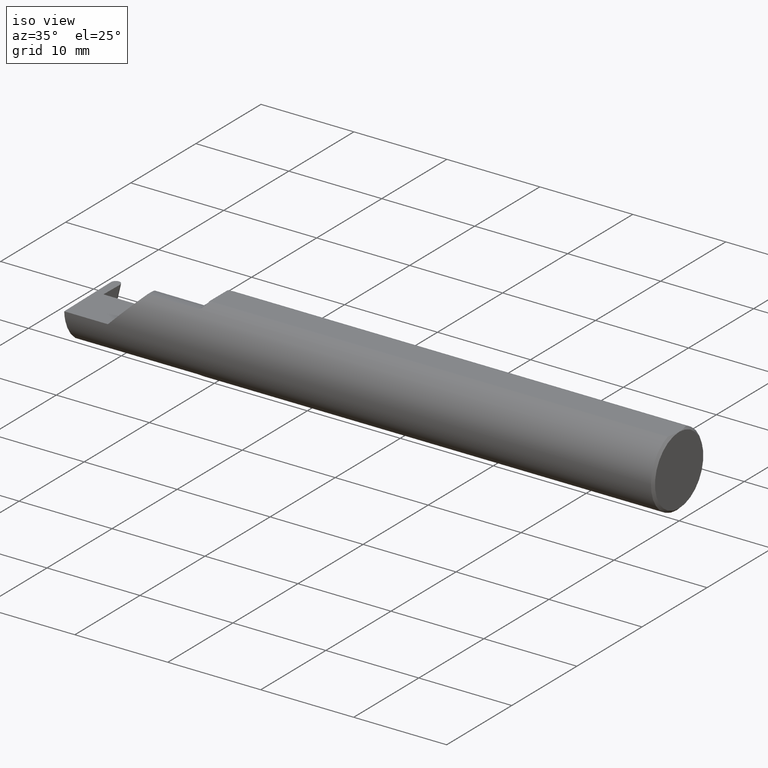
[diagram: clean part render]
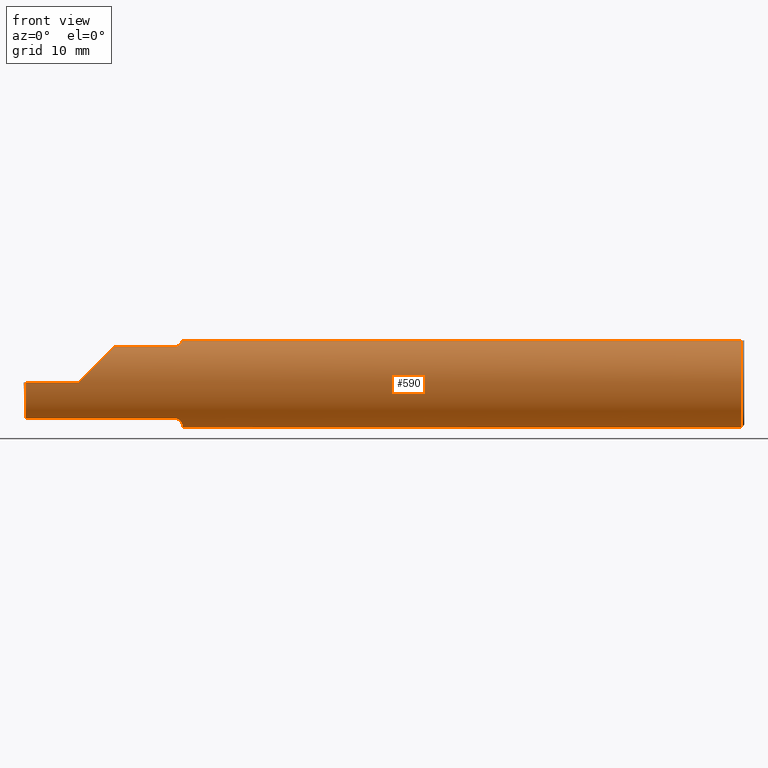
[diagram: tour spotlight — one face highlighted and labeled with its STEP entity id]
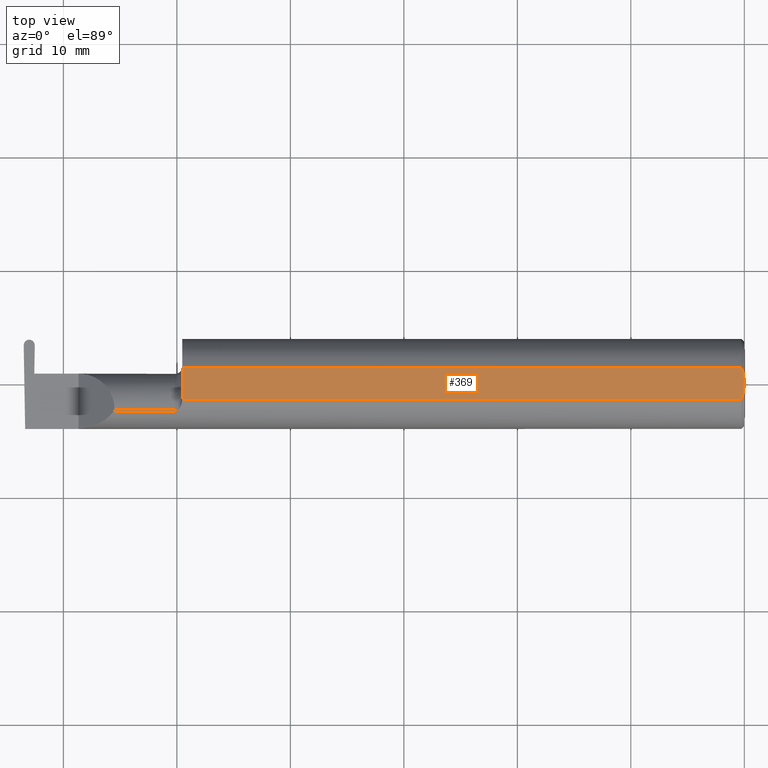
[diagram: tour spotlight — one face highlighted and labeled with its STEP entity id]
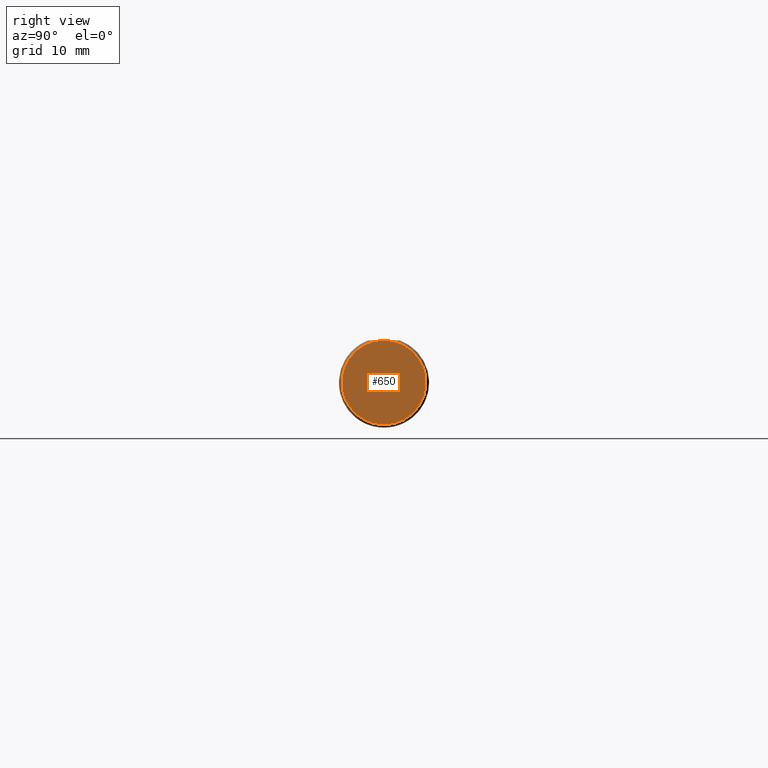
[diagram: tour spotlight — one face highlighted and labeled with its STEP entity id]
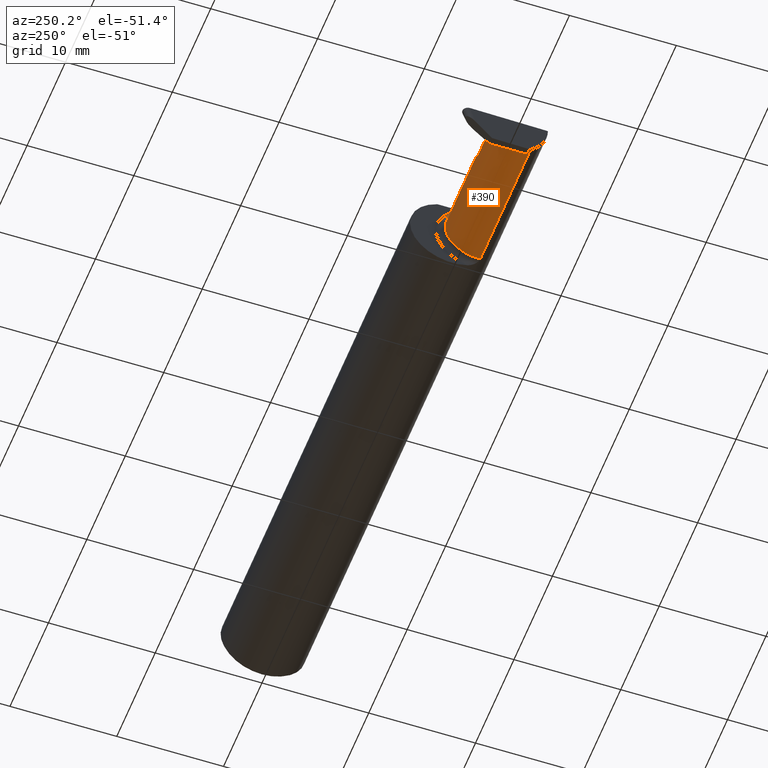
[diagram: tour spotlight — one face highlighted and labeled with its STEP entity id]
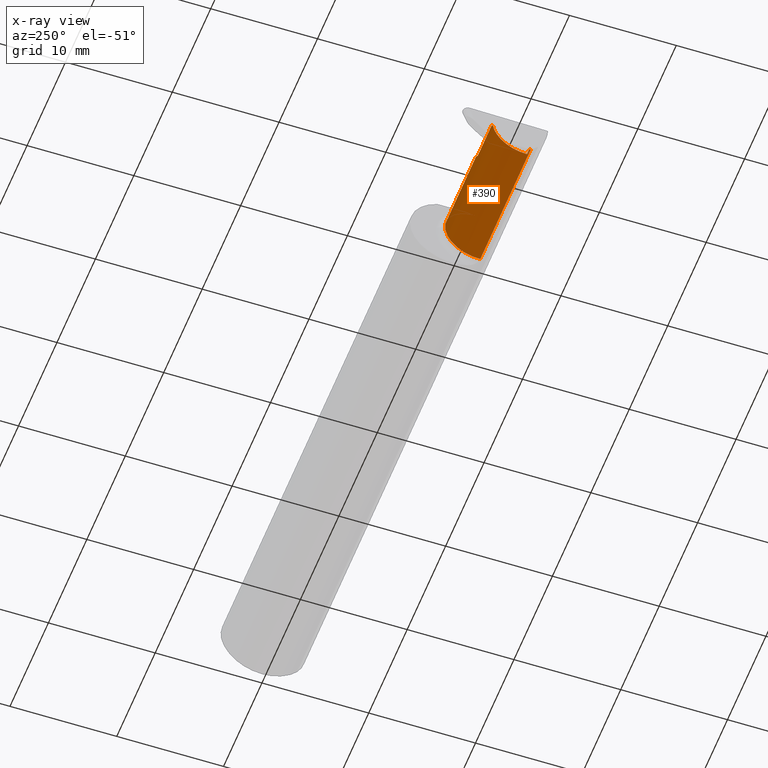
[diagram: x-ray of the same camera — body ghosted, this tour face saturated]
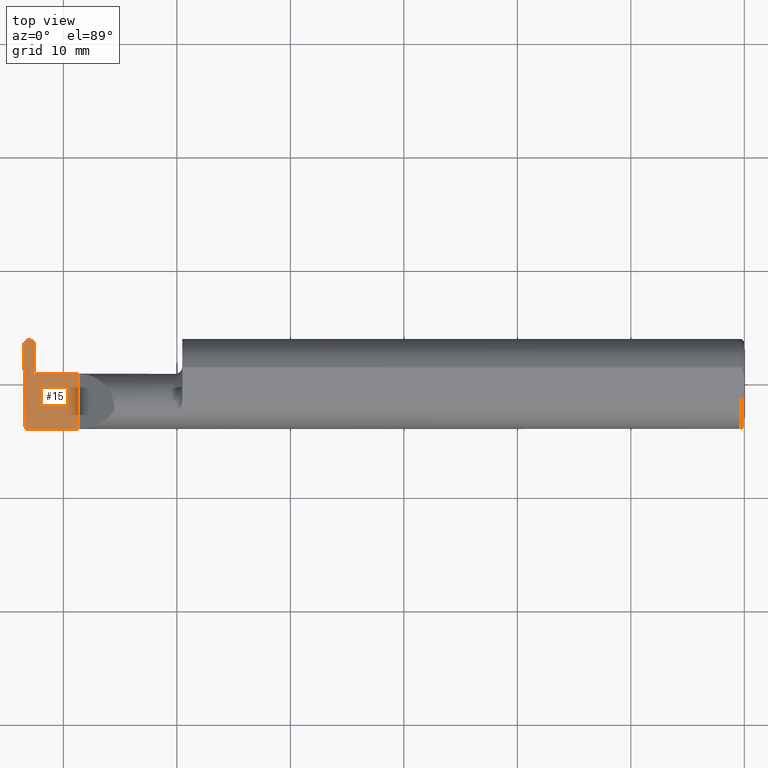
[diagram: tour spotlight — one face highlighted and labeled with its STEP entity id]
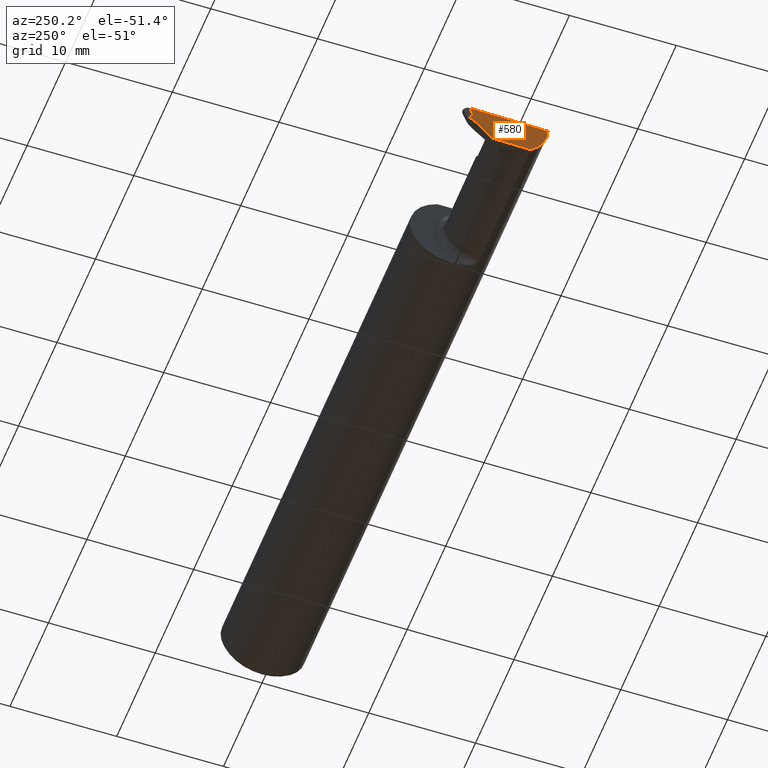
[diagram: tour spotlight — one face highlighted and labeled with its STEP entity id]
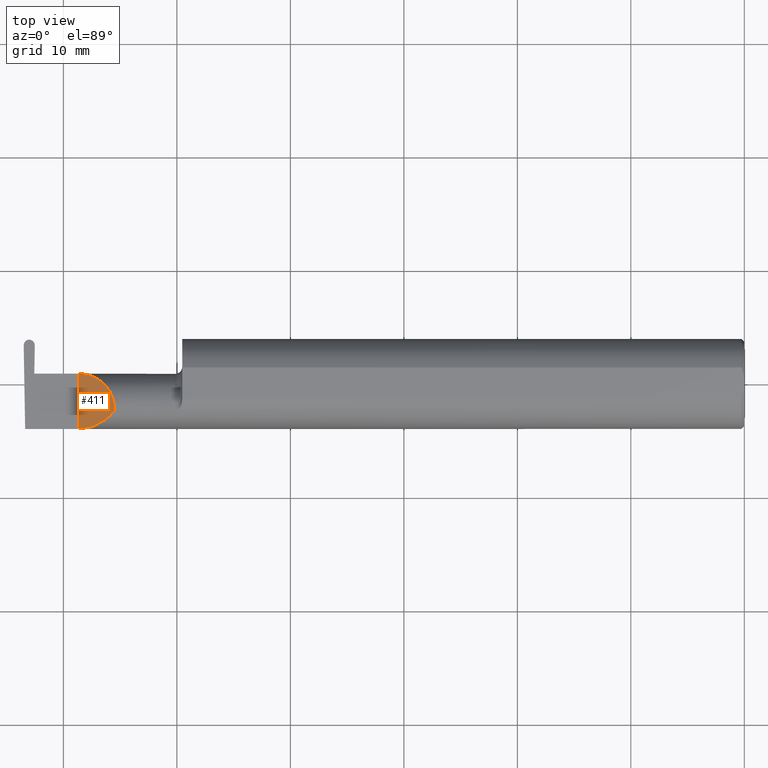
[diagram: tour spotlight — one face highlighted and labeled with its STEP entity id]
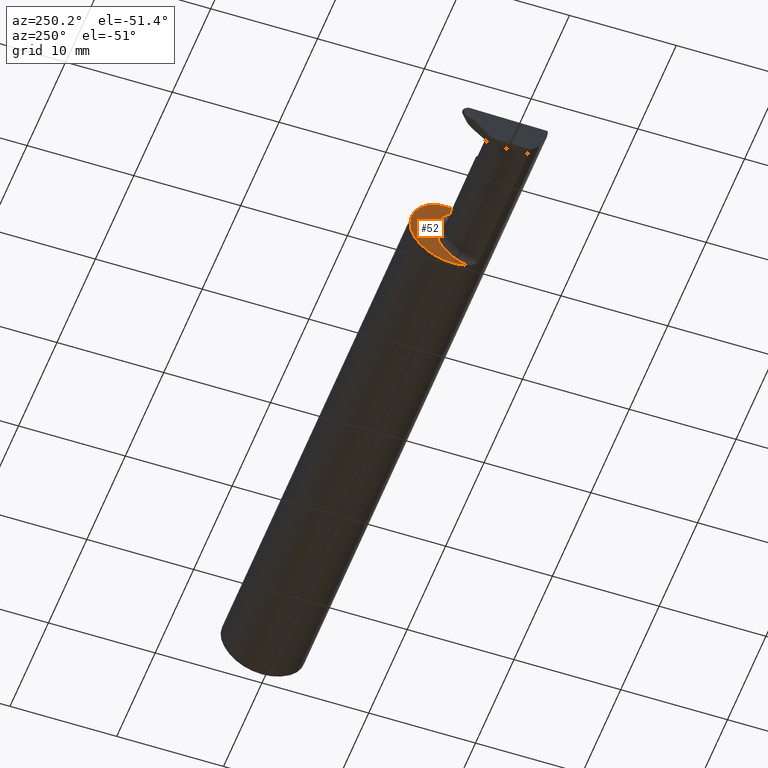
[diagram: tour spotlight — one face highlighted and labeled with its STEP entity id]
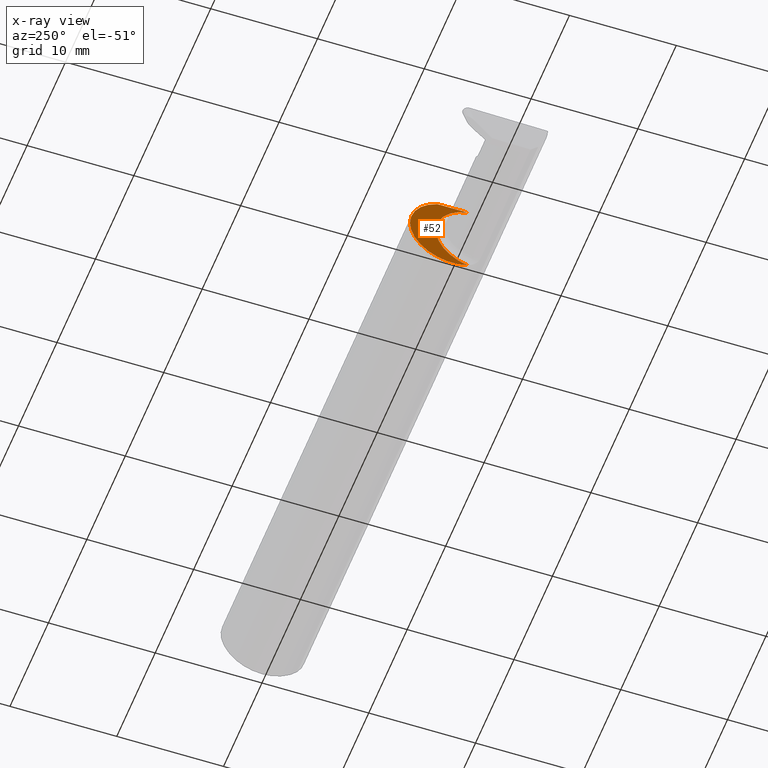
[diagram: x-ray of the same camera — body ghosted, this tour face saturated]
A machine part: a face-by-face anatomy tour. The part has 19 B-rep faces; the first image is the clean iso view, then the 8 largest visible faces are spotlighted one at a time (largest first), each with its STEP entity span.

Face 1 — front view, entity #590. In plain terms, the highlighted cylindrical surface (partial cylindrical patch) has radius 3.9688 mm, axis along (1, -0, -0).
Definition (entity closure, byte-faithful):
#1 = AXIS2_PLACEMENT_3D ( 'NONE', #309, #184, #193 ) ;
#9 = ORIENTED_EDGE ( 'NONE', *, *, #557, .F. ) ;
#11 = CARTESIAN_POINT ( 'NONE',  ( -1.949999999999999956, 0.000000000000000000, 0.000000000000000000 ) ) ;
#19 = DIRECTION ( 'NONE',  ( 1.000000000000000000, -3.338035182874222358E-17, -0.000000000000000000 ) ) ;
#25 = CARTESIAN_POINT ( 'NONE',  ( -1.949999999999999956, 0.000000000000000000, 0.000000000000000000 ) ) ;
#36 = CARTESIAN_POINT ( 'NONE',  ( -1.959400685719824731, -0.08659007606816881975, 0.1301030744137035011 ) ) ;
#40 = DIRECTION ( 'NONE',  ( 1.000000000000000000, -0.000000000000000000, -0.000000000000000000 ) ) ;
#43 = VERTEX_POINT ( 'NONE', #166 ) ;
#54 = CARTESIAN_POINT ( 'NONE',  ( -1.965967849784562294, -0.09193282278905870464, -0.1263844681298753603 ) ) ;
#59 = CARTESIAN_POINT ( 'NONE',  ( -1.949999999999999956, -0.05534803921568629687, -0.1461186403405768386 ) ) ;
#61 = ORIENTED_EDGE ( 'NONE', *, *, #678, .F. ) ;
#62 = CARTESIAN_POINT ( 'NONE',  ( -2.494927872186967654, -0.1562500000000000000, 0.000000000000000000 ) ) ;
#63 = CARTESIAN_POINT ( 'NONE',  ( -2.215156862139568972, -0.1338832970343760420, 0.09484313786043013783 ) ) ;
#64 = CARTESIAN_POINT ( 'NONE',  ( -1.952023682547747718, -0.07195611532245098363, 0.1387680352243327309 ) ) ;
#66 = VECTOR ( 'NONE', #248, 39.37007874015748143 ) ;
#71 = CARTESIAN_POINT ( 'NONE',  ( -0.009999999999999346217, 0.000000000000000000, -0.1562500000000000000 ) ) ;
#82 = EDGE_CURVE ( 'NONE', #158, #622, #478, .T. ) ;
#92 = EDGE_CURVE ( 'NONE', #464, #352, #605, .T. ) ;
#93 = CARTESIAN_POINT ( 'NONE',  ( -1.949999999999999956, 0.05500000000000025702, 0.1462499999999999079 ) ) ;
#100 = CARTESIAN_POINT ( 'NONE',  ( -2.493179509878302724, -0.1562499999999999722, -0.05005892052379400797 ) ) ;
#102 = EDGE_CURVE ( 'NONE', #143, #679, #505, .T. ) ;
#113 = VECTOR ( 'NONE', #640, 39.37007874015748143 ) ;
#115 = LINE ( 'NONE', #220, #388 ) ;
#118 =( BOUNDED_CURVE ( )  B_SPLINE_CURVE ( 3, ( #632, #697, #100, #151 ),
 .UNSPECIFIED., .F., .F. ) 
 B_SPLINE_CURVE_WITH_KNOTS ( ( 4, 4 ),
 ( 0.1809441638248390216, 1.107331509589547291 ),
 .UNSPECIFIED. ) 
 CURVE ( )  GEOMETRIC_REPRESENTATION_ITEM ( )  RATIONAL_B_SPLINE_CURVE ( ( 1.000000000000000000, 0.9297534034964446414, 0.9297534034964446414, 1.000000000000000000 ) ) 
 REPRESENTATION_ITEM ( '' )  );
#119 = CARTESIAN_POINT ( 'NONE',  ( -1.974999999999999867, -0.09386344537815119460, 0.1249148354749860523 ) ) ;
#124 = VERTEX_POINT ( 'NONE', #671 ) ;
#130 = CARTESIAN_POINT ( 'NONE',  ( -1.953289288103727595, -0.07591569094036354493, 0.1366337481269577492 ) ) ;
#133 = CARTESIAN_POINT ( 'NONE',  ( -0.009999999999999346217, -0.05500000000000025702, 0.1462499999999999079 ) ) ;
#139 = EDGE_CURVE ( 'NONE', #361, #320, #693, .T. ) ;
#143 = VERTEX_POINT ( 'NONE', #673 ) ;
#151 = CARTESIAN_POINT ( 'NONE',  ( -2.494927872186967654, -0.1562500000000000000, 0.000000000000000000 ) ) ;
#153 = CARTESIAN_POINT ( 'NONE',  ( -0.009999999999999346217, 0.000000000000000000, 0.000000000000000000 ) ) ;
#158 = VERTEX_POINT ( 'NONE', #133 ) ;
#166 = CARTESIAN_POINT ( 'NONE',  ( -1.974999999999999867, -0.09386344537815119460, -0.1249148354749860523 ) ) ;
#170 = CARTESIAN_POINT ( 'NONE',  ( -1.950383140461503739, -0.06383962317138457132, -0.1426848719775293262 ) ) ;
#176 = CARTESIAN_POINT ( 'NONE',  ( -1.970300896833253379, -0.09386344537815112521, -0.1249148354749860523 ) ) ;
#177 = DIRECTION ( 'NONE',  ( 0.000000000000000000, 1.000000000000000000, 0.000000000000000000 ) ) ;
#179 = EDGE_CURVE ( 'NONE', #124, #43, #343, .T. ) ;
#184 = DIRECTION ( 'NONE',  ( 1.000000000000000000, -0.000000000000000000, -0.000000000000000000 ) ) ;
#190 = DIRECTION ( 'NONE',  ( 1.000000000000000000, -3.338035182874222358E-17, -0.000000000000000000 ) ) ;
#193 = DIRECTION ( 'NONE',  ( 0.000000000000000000, 0.000000000000000000, 1.000000000000000000 ) ) ;
#197 = CARTESIAN_POINT ( 'NONE',  ( 0.000000000000000000, 0.05500000000000025702, 0.1462499999999999079 ) ) ;
#220 = CARTESIAN_POINT ( 'NONE',  ( -2.218249999999999833, -0.09386344537815120848, 0.1249148354749860385 ) ) ;
#245 = CARTESIAN_POINT ( 'NONE',  ( -1.949999999999999956, -0.05534803921568629687, 0.1461186403405768386 ) ) ;
#248 = DIRECTION ( 'NONE',  ( -1.000000000000000000, 0.000000000000000000, 0.000000000000000000 ) ) ;
#256 = ORIENTED_EDGE ( 'NONE', *, *, #428, .T. ) ;
#258 = LINE ( 'NONE', #589, #66 ) ;
#273 = B_SPLINE_CURVE_WITH_KNOTS ( 'NONE', 3,
 ( #245, #555, #408, #64, #130, #628, #36, #304, #283, #345 ),
 .UNSPECIFIED., .F., .F.,
 ( 4, 2, 2, 2, 4 ),
 ( 9.873825145674025903E-06, 0.0003576783385725466262, 0.0007054828519994191553, 0.001053287365426291847, 0.001401091878853164430 ),
 .UNSPECIFIED. ) ;
#280 = DIRECTION ( 'NONE',  ( 0.000000000000000000, 0.000000000000000000, -1.000000000000000000 ) ) ;
#282 = CARTESIAN_POINT ( 'NONE',  ( -2.185085164525012669, -0.09386344537815125011, 0.1249148354749859968 ) ) ;
#283 = CARTESIAN_POINT ( 'NONE',  ( -1.970304923017528465, -0.09386344537815119460, 0.1249148354749860385 ) ) ;
#293 = CARTESIAN_POINT ( 'NONE',  ( -2.218249999999999833, -0.09386344537815120848, -0.1249148354749860385 ) ) ;
#295 = DIRECTION ( 'NONE',  ( 0.000000000000000000, 1.000000000000000000, 0.000000000000000000 ) ) ;
#297 = VECTOR ( 'NONE', #190, 39.37007874015748143 ) ;
#299 = AXIS2_PLACEMENT_3D ( 'NONE', #11, #554, #177 ) ;
#304 = CARTESIAN_POINT ( 'NONE',  ( -1.965967406991768751, -0.09193165638357553293, 0.1263852119512450800 ) ) ;
#309 = CARTESIAN_POINT ( 'NONE',  ( 0.000000000000000000, 0.000000000000000000, 0.000000000000000000 ) ) ;
#315 = ORIENTED_EDGE ( 'NONE', *, *, #457, .T. ) ;
#320 = VERTEX_POINT ( 'NONE', #373 ) ;
#325 = EDGE_CURVE ( 'NONE', #622, #521, #476, .T. ) ;
#327 = CARTESIAN_POINT ( 'NONE',  ( -1.956966607163546090, -0.08318908054468117375, -0.1323305570077901450 ) ) ;
#336 = CARTESIAN_POINT ( 'NONE',  ( -2.259941079476205594, -0.1562499999999999722, 0.05005892052379393165 ) ) ;
#341 = EDGE_CURVE ( 'NONE', #158, #361, #258, .T. ) ;
#343 = LINE ( 'NONE', #293, #297 ) ;
#345 = CARTESIAN_POINT ( 'NONE',  ( -1.974999999999999867, -0.09386344537815119460, 0.1249148354749860523 ) ) ;
#352 = VERTEX_POINT ( 'NONE', #93 ) ;
#361 = VERTEX_POINT ( 'NONE', #415 ) ;
#367 = DIRECTION ( 'NONE',  ( 1.000000000000000000, -0.000000000000000000, -0.000000000000000000 ) ) ;
#373 = CARTESIAN_POINT ( 'NONE',  ( -1.949999999999999956, -0.05534803921568629687, 0.1461186403405768386 ) ) ;
#376 = CARTESIAN_POINT ( 'NONE',  ( -1.974999999999999867, -0.09386344537815119460, -0.1249148354749860523 ) ) ;
#386 = CARTESIAN_POINT ( 'NONE',  ( -2.310000000000000053, -0.1562500000000000000, 2.326828918379970872E-17 ) ) ;
#388 = VECTOR ( 'NONE', #594, 39.37007874015748143 ) ;
#391 = CARTESIAN_POINT ( 'NONE',  ( -1.949999999999999956, -0.05534803921568629687, -0.1461186403405768386 ) ) ;
#397 = CARTESIAN_POINT ( 'NONE',  ( -0.009999999999999346217, 0.05500000000000025702, 0.1462499999999999079 ) ) ;
#408 = CARTESIAN_POINT ( 'NONE',  ( -1.950387770636936136, -0.06386308788874332787, 0.1426736000023626771 ) ) ;
#412 = DIRECTION ( 'NONE',  ( 0.000000000000000000, 0.000000000000000000, -1.000000000000000000 ) ) ;
#414 = LINE ( 'NONE', #677, #631 ) ;
#415 = CARTESIAN_POINT ( 'NONE',  ( -1.949999999999999956, -0.05500000000000029865, 0.1462499999999999079 ) ) ;
#428 = EDGE_CURVE ( 'NONE', #43, #464, #496, .T. ) ;
#442 = ORIENTED_EDGE ( 'NONE', *, *, #606, .T. ) ;
#444 = AXIS2_PLACEMENT_3D ( 'NONE', #547, #550, #280 ) ;
#457 = EDGE_CURVE ( 'NONE', #467, #679, #115, .T. ) ;
#464 = VERTEX_POINT ( 'NONE', #59 ) ;
#467 = VERTEX_POINT ( 'NONE', #119 ) ;
#476 = CIRCLE ( 'NONE', #625, 0.1562500000000000000 ) ;
#478 = CIRCLE ( 'NONE', #444, 0.1562500000000000000 ) ;
#482 = CARTESIAN_POINT ( 'NONE',  ( -1.952027726275598951, -0.07197667862393765381, -0.1387581634073279113 ) ) ;
#483 = VERTEX_POINT ( 'NONE', #62 ) ;
#487 = CARTESIAN_POINT ( 'NONE',  ( -1.959394838180912535, -0.08658451260680499750, -0.1301068786309085568 ) ) ;
#493 = CARTESIAN_POINT ( 'NONE',  ( -1.953300644947379983, -0.07593986101154449886, -0.1366196799491520286 ) ) ;
#496 = B_SPLINE_CURVE_WITH_KNOTS ( 'NONE', 3,
 ( #376, #176, #54, #487, #327, #493, #482, #170, #546, #391 ),
 .UNSPECIFIED., .F., .F.,
 ( 4, 2, 2, 2, 4 ),
 ( 1.958716531439439921E-07, 0.0003508962542770091802, 0.0007015966369008743483, 0.001052297019524739028, 0.001402997402148603925 ),
 .UNSPECIFIED. ) ;
#505 =( BOUNDED_CURVE ( )  B_SPLINE_CURVE ( 3, ( #386, #336, #63, #282 ),
 .UNSPECIFIED., .F., .F. ) 
 B_SPLINE_CURVE_WITH_KNOTS ( ( 4, 4 ),
 ( 4.712388980384689674, 5.638776326149397278 ),
 .UNSPECIFIED. ) 
 CURVE ( )  GEOMETRIC_REPRESENTATION_ITEM ( )  RATIONAL_B_SPLINE_CURVE ( ( 1.000000000000000000, 0.9297534034964446414, 0.9297534034964446414, 1.000000000000000000 ) ) 
 REPRESENTATION_ITEM ( '' )  );
#508 = ORIENTED_EDGE ( 'NONE', *, *, #341, .T. ) ;
#518 = ORIENTED_EDGE ( 'NONE', *, *, #92, .T. ) ;
#521 = VERTEX_POINT ( 'NONE', #397 ) ;
#529 = ORIENTED_EDGE ( 'NONE', *, *, #139, .T. ) ;
#532 = ORIENTED_EDGE ( 'NONE', *, *, #663, .T. ) ;
#535 = ORIENTED_EDGE ( 'NONE', *, *, #82, .F. ) ;
#546 = CARTESIAN_POINT ( 'NONE',  ( -1.949999999999997735, -0.05965267370558847981, -0.1444880949289790162 ) ) ;
#547 = CARTESIAN_POINT ( 'NONE',  ( -0.009999999999999346217, 0.000000000000000000, 0.000000000000000000 ) ) ;
#550 = DIRECTION ( 'NONE',  ( 1.000000000000000000, -0.000000000000000000, -0.000000000000000000 ) ) ;
#554 = DIRECTION ( 'NONE',  ( 1.000000000000000000, -3.338035182874222358E-17, -0.000000000000000000 ) ) ;
#555 = CARTESIAN_POINT ( 'NONE',  ( -1.949999999999999956, -0.05967641461363266259, 0.1444791021495058225 ) ) ;
#557 = EDGE_CURVE ( 'NONE', #483, #143, #414, .T. ) ;
#564 = FACE_OUTER_BOUND ( 'NONE', #630, .T. ) ;
#572 = ORIENTED_EDGE ( 'NONE', *, *, #179, .T. ) ;
#589 = CARTESIAN_POINT ( 'NONE',  ( 0.000000000000000000, -0.05500000000000025702, 0.1462499999999999079 ) ) ;
#590 = ADVANCED_FACE ( 'NONE', ( #564 ), #667, .T. ) ;
#594 = DIRECTION ( 'NONE',  ( -1.000000000000000000, 3.338035182874222358E-17, 0.000000000000000000 ) ) ;
#602 = AXIS2_PLACEMENT_3D ( 'NONE', #25, #19, #295 ) ;
#605 = CIRCLE ( 'NONE', #299, 0.1562500000000000000 ) ;
#606 = EDGE_CURVE ( 'NONE', #320, #467, #273, .T. ) ;
#622 = VERTEX_POINT ( 'NONE', #71 ) ;
#625 = AXIS2_PLACEMENT_3D ( 'NONE', #153, #367, #412 ) ;
#627 = ORIENTED_EDGE ( 'NONE', *, *, #102, .F. ) ;
#628 = CARTESIAN_POINT ( 'NONE',  ( -1.956971541672856141, -0.08320054785246587536, 0.1323240042291014829 ) ) ;
#630 = EDGE_LOOP ( 'NONE', ( #572, #256, #518, #532, #672, #535, #508, #529, #442, #315, #627, #9, #61 ) ) ;
#631 = VECTOR ( 'NONE', #40, 39.37007874015748143 ) ;
#632 = CARTESIAN_POINT ( 'NONE',  ( -2.491654046899279606, -0.09386344537815119460, -0.1249148354749860385 ) ) ;
#640 = DIRECTION ( 'NONE',  ( 1.000000000000000000, -0.000000000000000000, -0.000000000000000000 ) ) ;
#663 = EDGE_CURVE ( 'NONE', #352, #521, #681, .T. ) ;
#667 = CYLINDRICAL_SURFACE ( 'NONE', #1, 0.1562500000000000000 ) ;
#671 = CARTESIAN_POINT ( 'NONE',  ( -2.491654046899279606, -0.09386344537815119460, -0.1249148354749860385 ) ) ;
#672 = ORIENTED_EDGE ( 'NONE', *, *, #325, .F. ) ;
#673 = CARTESIAN_POINT ( 'NONE',  ( -2.310000000000000053, -0.1562500000000000000, 2.326828918379970872E-17 ) ) ;
#677 = CARTESIAN_POINT ( 'NONE',  ( -3.749399456654646757E-32, -0.1562499999999999722, 3.061616997868383634E-16 ) ) ;
#678 = EDGE_CURVE ( 'NONE', #124, #483, #118, .T. ) ;
#679 = VERTEX_POINT ( 'NONE', #690 ) ;
#681 = LINE ( 'NONE', #197, #113 ) ;
#690 = CARTESIAN_POINT ( 'NONE',  ( -2.185085164525012669, -0.09386344537815125011, 0.1249148354749859968 ) ) ;
#693 = CIRCLE ( 'NONE', #602, 0.1562500000000000000 ) ;
#697 = CARTESIAN_POINT ( 'NONE',  ( -2.492005784574590432, -0.1338832970343760143, -0.09484313786043020722 ) ) ;

Face 2 — top view, entity #369. In plain terms, the highlighted planar face has unit normal (0, 0, 1).
Definition (entity closure, byte-faithful):
#4 = EDGE_CURVE ( 'NONE', #158, #276, #498, .T. ) ;
#45 = CARTESIAN_POINT ( 'NONE',  ( -1.949999999999999956, 0.1562499999999999722, 0.1462499999999999079 ) ) ;
#66 = VECTOR ( 'NONE', #248, 39.37007874015748143 ) ;
#74 = B_SPLINE_CURVE_WITH_KNOTS ( 'NONE', 3,
 ( #575, #664, #503, #180, #250, #519 ),
 .UNSPECIFIED., .F., .F.,
 ( 4, 2, 4 ),
 ( 0.002917204643106987867, 0.003626485218777173065, 0.004335765794447357831 ),
 .UNSPECIFIED. ) ;
#93 = CARTESIAN_POINT ( 'NONE',  ( -1.949999999999999956, 0.05500000000000025702, 0.1462499999999999079 ) ) ;
#113 = VECTOR ( 'NONE', #640, 39.37007874015748143 ) ;
#116 = CARTESIAN_POINT ( 'NONE',  ( -0.006902993000889765321, -0.04620168466162338089, 0.1462499999999999079 ) ) ;
#133 = CARTESIAN_POINT ( 'NONE',  ( -0.009999999999999346217, -0.05500000000000025702, 0.1462499999999999079 ) ) ;
#142 = AXIS2_PLACEMENT_3D ( 'NONE', #364, #582, #255 ) ;
#149 = FACE_OUTER_BOUND ( 'NONE', #340, .T. ) ;
#158 = VERTEX_POINT ( 'NONE', #133 ) ;
#171 = CARTESIAN_POINT ( 'NONE',  ( 8.244898656659575962E-16, -0.009392195110445691539, 0.1462499999999999079 ) ) ;
#180 = CARTESIAN_POINT ( 'NONE',  ( -0.004369978710878717927, 0.03712520110649330379, 0.1462499999999998801 ) ) ;
#197 = CARTESIAN_POINT ( 'NONE',  ( 0.000000000000000000, 0.05500000000000025702, 0.1462499999999999079 ) ) ;
#199 = DIRECTION ( 'NONE',  ( 3.338035182874222358E-17, 1.000000000000000000, 0.000000000000000000 ) ) ;
#217 = CARTESIAN_POINT ( 'NONE',  ( -0.004356020035457939046, -0.03707757839199336825, 0.1462499999999999356 ) ) ;
#248 = DIRECTION ( 'NONE',  ( -1.000000000000000000, 0.000000000000000000, 0.000000000000000000 ) ) ;
#250 = CARTESIAN_POINT ( 'NONE',  ( -0.006876244390215646360, 0.04612569429038746588, 0.1462499999999999079 ) ) ;
#255 = DIRECTION ( 'NONE',  ( -1.000000000000000000, 0.000000000000000000, 0.000000000000000000 ) ) ;
#258 = LINE ( 'NONE', #589, #66 ) ;
#276 = VERTEX_POINT ( 'NONE', #641 ) ;
#286 = EDGE_CURVE ( 'NONE', #361, #352, #463, .T. ) ;
#340 = EDGE_LOOP ( 'NONE', ( #470, #567, #479, #399, #586 ) ) ;
#341 = EDGE_CURVE ( 'NONE', #158, #361, #258, .T. ) ;
#352 = VERTEX_POINT ( 'NONE', #93 ) ;
#361 = VERTEX_POINT ( 'NONE', #415 ) ;
#364 = CARTESIAN_POINT ( 'NONE',  ( -2.815049599269702885, 0.1562500000000000000, 0.1462499999999999079 ) ) ;
#369 = ADVANCED_FACE ( 'NONE', ( #149 ), #638, .T. ) ;
#378 = CARTESIAN_POINT ( 'NONE',  ( -0.0009112379456083213175, -0.01868163542566874183, 0.1462499999999998801 ) ) ;
#397 = CARTESIAN_POINT ( 'NONE',  ( -0.009999999999999346217, 0.05500000000000025702, 0.1462499999999999079 ) ) ;
#399 = ORIENTED_EDGE ( 'NONE', *, *, #663, .F. ) ;
#415 = CARTESIAN_POINT ( 'NONE',  ( -1.949999999999999956, -0.05500000000000029865, 0.1462499999999999079 ) ) ;
#436 = CARTESIAN_POINT ( 'NONE',  ( -0.009999999999999346217, -0.05500000000000025702, 0.1462499999999999079 ) ) ;
#463 = LINE ( 'NONE', #45, #548 ) ;
#470 = ORIENTED_EDGE ( 'NONE', *, *, #341, .F. ) ;
#479 = ORIENTED_EDGE ( 'NONE', *, *, #613, .T. ) ;
#492 = CARTESIAN_POINT ( 'NONE',  ( 0.000000000000000000, 0.000000000000000000, 0.1462499999999999079 ) ) ;
#498 = B_SPLINE_CURVE_WITH_KNOTS ( 'NONE', 3,
 ( #436, #116, #217, #378, #171, #492 ),
 .UNSPECIFIED., .F., .F.,
 ( 4, 2, 4 ),
 ( 0.001499968775326589784, 0.002208586709216788825, 0.002917204643106987867 ),
 .UNSPECIFIED. ) ;
#503 = CARTESIAN_POINT ( 'NONE',  ( -0.0009289815493471145118, 0.01880306305459481311, 0.1462499999999999356 ) ) ;
#519 = CARTESIAN_POINT ( 'NONE',  ( -0.009999999999999346217, 0.05500000000000025702, 0.1462499999999999079 ) ) ;
#521 = VERTEX_POINT ( 'NONE', #397 ) ;
#548 = VECTOR ( 'NONE', #199, 39.37007874015748143 ) ;
#567 = ORIENTED_EDGE ( 'NONE', *, *, #4, .T. ) ;
#575 = CARTESIAN_POINT ( 'NONE',  ( 0.000000000000000000, 0.000000000000000000, 0.1462499999999999079 ) ) ;
#582 = DIRECTION ( 'NONE',  ( 0.000000000000000000, 0.000000000000000000, 1.000000000000000000 ) ) ;
#586 = ORIENTED_EDGE ( 'NONE', *, *, #286, .F. ) ;
#589 = CARTESIAN_POINT ( 'NONE',  ( 0.000000000000000000, -0.05500000000000025702, 0.1462499999999999079 ) ) ;
#613 = EDGE_CURVE ( 'NONE', #276, #521, #74, .T. ) ;
#638 = PLANE ( 'NONE',  #142 ) ;
#640 = DIRECTION ( 'NONE',  ( 1.000000000000000000, -0.000000000000000000, -0.000000000000000000 ) ) ;
#641 = CARTESIAN_POINT ( 'NONE',  ( 0.000000000000000000, 0.000000000000000000, 0.1462499999999999079 ) ) ;
#663 = EDGE_CURVE ( 'NONE', #352, #521, #681, .T. ) ;
#664 = CARTESIAN_POINT ( 'NONE',  ( 8.387126826739872023E-16, 0.009400977926386628464, 0.1462499999999999079 ) ) ;
#681 = LINE ( 'NONE', #197, #113 ) ;

Face 3 — right view, entity #650. In plain terms, the highlighted planar face has unit normal (-1, -0, 0).
Definition (entity closure, byte-faithful):
#3 = EDGE_CURVE ( 'NONE', #276, #206, #454, .T. ) ;
#56 = AXIS2_PLACEMENT_3D ( 'NONE', #342, #461, #465 ) ;
#132 = ORIENTED_EDGE ( 'NONE', *, *, #420, .T. ) ;
#175 = CIRCLE ( 'NONE', #226, 0.1462500000000006017 ) ;
#206 = VERTEX_POINT ( 'NONE', #356 ) ;
#219 = CARTESIAN_POINT ( 'NONE',  ( 6.716919984422033216E-17, -1.610720944981573921E-17, 0.000000000000000000 ) ) ;
#226 = AXIS2_PLACEMENT_3D ( 'NONE', #435, #651, #648 ) ;
#239 = EDGE_LOOP ( 'NONE', ( #634, #132 ) ) ;
#275 = DIRECTION ( 'NONE',  ( 1.000000000000000000, 1.101347654688252073E-16, 0.000000000000000000 ) ) ;
#276 = VERTEX_POINT ( 'NONE', #641 ) ;
#342 = CARTESIAN_POINT ( 'NONE',  ( 0.000000000000000000, 0.6098818984023103296, -0.1562500000000000000 ) ) ;
#356 = CARTESIAN_POINT ( 'NONE',  ( 6.716919984422033216E-17, 3.980760711824011364E-32, -0.1462500000000006017 ) ) ;
#394 = FACE_OUTER_BOUND ( 'NONE', #239, .T. ) ;
#420 = EDGE_CURVE ( 'NONE', #206, #276, #175, .T. ) ;
#435 = CARTESIAN_POINT ( 'NONE',  ( 6.716919984422033216E-17, -1.610720944981573921E-17, 0.000000000000000000 ) ) ;
#454 = CIRCLE ( 'NONE', #515, 0.1462500000000006017 ) ;
#461 = DIRECTION ( 'NONE',  ( -1.000000000000000000, -1.101347654688252073E-16, 0.000000000000000000 ) ) ;
#465 = DIRECTION ( 'NONE',  ( 1.101347654688252073E-16, -1.000000000000000000, 0.000000000000000000 ) ) ;
#515 = AXIS2_PLACEMENT_3D ( 'NONE', #219, #275, #604 ) ;
#604 = DIRECTION ( 'NONE',  ( 1.101347654688252196E-16, -1.000000000000000000, 0.000000000000000000 ) ) ;
#610 = PLANE ( 'NONE',  #56 ) ;
#634 = ORIENTED_EDGE ( 'NONE', *, *, #3, .T. ) ;
#641 = CARTESIAN_POINT ( 'NONE',  ( 0.000000000000000000, 0.000000000000000000, 0.1462499999999999079 ) ) ;
#648 = DIRECTION ( 'NONE',  ( 1.101347654688252196E-16, -1.000000000000000000, 0.000000000000000000 ) ) ;
#650 = ADVANCED_FACE ( 'NONE', ( #394 ), #610, .F. ) ;
#651 = DIRECTION ( 'NONE',  ( 1.000000000000000000, 1.101347654688252073E-16, 0.000000000000000000 ) ) ;

Face 4 — auxiliary view, entity #390. An x-ray twin of the same camera follows (body ghosted, this face saturated) — the face is partly hidden behind the body. In plain terms, the highlighted cylindrical surface (edge-blend (fillet) strip) has radius 3.175 mm, axis along (1, -0, -0).
Definition (entity closure, byte-faithful):
#5 = CYLINDRICAL_SURFACE ( 'NONE', #354, 0.1250000000000000555 ) ;
#18 = CIRCLE ( 'NONE', #106, 0.1250000000000000555 ) ;
#38 = CARTESIAN_POINT ( 'NONE',  ( -2.310000000000000053, 0.03574999999999998318, 6.735557395310446214E-17 ) ) ;
#39 = VERTEX_POINT ( 'NONE', #646 ) ;
#43 = VERTEX_POINT ( 'NONE', #166 ) ;
#50 = DIRECTION ( 'NONE',  ( -1.000000000000000000, 3.338035182874222358E-17, 0.000000000000000000 ) ) ;
#75 = LINE ( 'NONE', #510, #423 ) ;
#79 = VECTOR ( 'NONE', #430, 39.37007874015748143 ) ;
#84 = CARTESIAN_POINT ( 'NONE',  ( -2.491731600424126114, -0.08924999999999995437, -0.1250000000000000278 ) ) ;
#86 = CARTESIAN_POINT ( 'NONE',  ( -2.182302892373305880, -0.01852992788968683621, 0.1276971076266923411 ) ) ;
#106 = AXIS2_PLACEMENT_3D ( 'NONE', #500, #50, #222 ) ;
#107 = LINE ( 'NONE', #213, #79 ) ;
#115 = LINE ( 'NONE', #220, #388 ) ;
#119 = CARTESIAN_POINT ( 'NONE',  ( -1.974999999999999867, -0.09386344537815119460, 0.1249148354749860523 ) ) ;
#124 = VERTEX_POINT ( 'NONE', #671 ) ;
#134 = ORIENTED_EDGE ( 'NONE', *, *, #494, .T. ) ;
#136 = EDGE_CURVE ( 'NONE', #196, #39, #75, .T. ) ;
#138 = ORIENTED_EDGE ( 'NONE', *, *, #366, .T. ) ;
#140 =( BOUNDED_CURVE ( )  B_SPLINE_CURVE ( 3, ( #262, #576, #194, #694 ),
 .UNSPECIFIED., .F., .F. ) 
 B_SPLINE_CURVE_WITH_KNOTS ( ( 4, 4 ),
 ( 3.176499238629678867, 4.677482395344784827 ),
 .UNSPECIFIED. ) 
 CURVE ( )  GEOMETRIC_REPRESENTATION_ITEM ( )  RATIONAL_B_SPLINE_CURVE ( ( 1.000000000000000000, 0.8209024677461176367, 0.8209024677461176367, 1.000000000000000000 ) ) 
 REPRESENTATION_ITEM ( '' )  );
#141 = CARTESIAN_POINT ( 'NONE',  ( -2.310000000000000053, 0.03574999999999998318, 6.735557395310446214E-17 ) ) ;
#146 = ORIENTED_EDGE ( 'NONE', *, *, #360, .F. ) ;
#154 = ORIENTED_EDGE ( 'NONE', *, *, #486, .T. ) ;
#166 = CARTESIAN_POINT ( 'NONE',  ( -1.974999999999999867, -0.09386344537815119460, -0.1249148354749860523 ) ) ;
#172 = EDGE_CURVE ( 'NONE', #188, #674, #452, .T. ) ;
#179 = EDGE_CURVE ( 'NONE', #124, #43, #343, .T. ) ;
#185 = DIRECTION ( 'NONE',  ( -1.000000000000000000, 3.338035182874222358E-17, 0.000000000000000000 ) ) ;
#188 = VERTEX_POINT ( 'NONE', #238 ) ;
#189 =( BOUNDED_CURVE ( )  B_SPLINE_CURVE ( 3, ( #507, #232, #581, #84 ),
 .UNSPECIFIED., .F., .T. ) 
 B_SPLINE_CURVE_WITH_KNOTS ( ( 4, 4 ),
 ( 0.4265488699883174251, 0.4634648172053507098 ),
 .UNSPECIFIED. ) 
 CURVE ( )  GEOMETRIC_REPRESENTATION_ITEM ( )  RATIONAL_B_SPLINE_CURVE ( ( 1.000000000000000000, 0.9998864376276719312, 0.9998864376276719312, 1.000000000000000000 ) ) 
 REPRESENTATION_ITEM ( '' )  );
#190 = DIRECTION ( 'NONE',  ( 1.000000000000000000, -3.338035182874222358E-17, -0.000000000000000000 ) ) ;
#194 = CARTESIAN_POINT ( 'NONE',  ( -2.465987837521955051, 0.03061608555686810840, -0.07778349322819337608 ) ) ;
#196 = VERTEX_POINT ( 'NONE', #141 ) ;
#203 = VERTEX_POINT ( 'NONE', #228 ) ;
#213 = CARTESIAN_POINT ( 'NONE',  ( -1.949999999999999956, 0.03544550628247788993, -0.008719559218017548449 ) ) ;
#214 = VERTEX_POINT ( 'NONE', #243 ) ;
#216 = CARTESIAN_POINT ( 'NONE',  ( -1.949999999999999956, -0.08925000000000006539, 0.000000000000000000 ) ) ;
#220 = CARTESIAN_POINT ( 'NONE',  ( -2.218249999999999833, -0.09386344537815120848, 0.1249148354749860385 ) ) ;
#222 = DIRECTION ( 'NONE',  ( 0.000000000000000000, -1.000000000000000000, 0.000000000000000000 ) ) ;
#228 = CARTESIAN_POINT ( 'NONE',  ( -2.455856563967764750, 0.03544550628247786217, -0.008719559218018039376 ) ) ;
#232 = CARTESIAN_POINT ( 'NONE',  ( -2.491678896027814893, -0.09232624159892571791, -0.1249716086008007682 ) ) ;
#238 = CARTESIAN_POINT ( 'NONE',  ( -2.491731600424126114, -0.08924999999999995437, -0.1250000000000000278 ) ) ;
#243 = CARTESIAN_POINT ( 'NONE',  ( -2.463530610404879084, 0.03544550628247787605, -0.008719559218017850291 ) ) ;
#262 = CARTESIAN_POINT ( 'NONE',  ( -2.467812226837702738, -0.08925000000000005151, -0.1250000000000000278 ) ) ;
#293 = CARTESIAN_POINT ( 'NONE',  ( -2.218249999999999833, -0.09386344537815120848, -0.1249148354749860385 ) ) ;
#297 = VECTOR ( 'NONE', #190, 39.37007874015748143 ) ;
#310 = CARTESIAN_POINT ( 'NONE',  ( -2.456059559779446122, 0.03575000000000000400, -0.002908882086657957940 ) ) ;
#311 = ORIENTED_EDGE ( 'NONE', *, *, #558, .T. ) ;
#312 = CARTESIAN_POINT ( 'NONE',  ( -2.467812226837702738, -0.08925000000000005151, -0.1250000000000000278 ) ) ;
#314 = EDGE_CURVE ( 'NONE', #674, #214, #140, .T. ) ;
#319 = DIRECTION ( 'NONE',  ( 0.000000000000000000, -1.000000000000000000, 0.000000000000000000 ) ) ;
#343 = LINE ( 'NONE', #293, #297 ) ;
#353 = VECTOR ( 'NONE', #568, 39.37007874015748143 ) ;
#354 = AXIS2_PLACEMENT_3D ( 'NONE', #216, #433, #319 ) ;
#360 = EDGE_CURVE ( 'NONE', #679, #196, #695, .T. ) ;
#366 = EDGE_CURVE ( 'NONE', #203, #39, #621, .T. ) ;
#388 = VECTOR ( 'NONE', #594, 39.37007874015748143 ) ;
#390 = ADVANCED_FACE ( 'NONE', ( #490 ), #5, .T. ) ;
#403 = ORIENTED_EDGE ( 'NONE', *, *, #179, .F. ) ;
#422 = CARTESIAN_POINT ( 'NONE',  ( -2.185085164525012669, -0.09386344537815125011, 0.1249148354749859968 ) ) ;
#423 = VECTOR ( 'NONE', #185, 39.37007874015748143 ) ;
#426 = CARTESIAN_POINT ( 'NONE',  ( -2.456161057685287030, 0.03574999999999992073, 0.000000000000000000 ) ) ;
#427 = ORIENTED_EDGE ( 'NONE', *, *, #457, .F. ) ;
#430 = DIRECTION ( 'NONE',  ( 1.000000000000000000, -3.338035182874222358E-17, -0.000000000000000000 ) ) ;
#433 = DIRECTION ( 'NONE',  ( 1.000000000000000000, -3.338035182874222358E-17, -0.000000000000000000 ) ) ;
#452 = LINE ( 'NONE', #623, #353 ) ;
#457 = EDGE_CURVE ( 'NONE', #467, #679, #115, .T. ) ;
#467 = VERTEX_POINT ( 'NONE', #119 ) ;
#486 = EDGE_CURVE ( 'NONE', #467, #43, #18, .T. ) ;
#490 = FACE_OUTER_BOUND ( 'NONE', #653, .T. ) ;
#494 = EDGE_CURVE ( 'NONE', #214, #203, #107, .T. ) ;
#500 = CARTESIAN_POINT ( 'NONE',  ( -1.974999999999999867, -0.08925000000000006539, 0.000000000000000000 ) ) ;
#507 = CARTESIAN_POINT ( 'NONE',  ( -2.491654046899279606, -0.09386344537815119460, -0.1249148354749860385 ) ) ;
#510 = CARTESIAN_POINT ( 'NONE',  ( -1.949999999999999956, 0.03574999999999996930, 6.735557395310446214E-17 ) ) ;
#524 = CARTESIAN_POINT ( 'NONE',  ( -2.234615121572618435, 0.03574999999999999012, 0.07538487842738049449 ) ) ;
#556 = ORIENTED_EDGE ( 'NONE', *, *, #314, .T. ) ;
#558 = EDGE_CURVE ( 'NONE', #124, #188, #189, .T. ) ;
#568 = DIRECTION ( 'NONE',  ( 1.000000000000000000, -0.000000000000000000, -0.000000000000000000 ) ) ;
#576 = CARTESIAN_POINT ( 'NONE',  ( -2.467726418575958203, -0.02001741890188683468, -0.1250000000000000555 ) ) ;
#581 = CARTESIAN_POINT ( 'NONE',  ( -2.491704750138817648, -0.09078825181510688513, -0.1250000000000001110 ) ) ;
#587 = CARTESIAN_POINT ( 'NONE',  ( -2.455856563967764750, 0.03544550628247786217, -0.008719559218018039376 ) ) ;
#594 = DIRECTION ( 'NONE',  ( -1.000000000000000000, 3.338035182874222358E-17, 0.000000000000000000 ) ) ;
#621 = B_SPLINE_CURVE_WITH_KNOTS ( 'NONE', 3,
 ( #587, #629, #310, #426 ),
 .UNSPECIFIED., .F., .F.,
 ( 4, 4 ),
 ( 0.000000000000000000, 1.000000000000000000 ),
 .UNSPECIFIED. ) ;
#623 = CARTESIAN_POINT ( 'NONE',  ( -2.690212243092998889, -0.08924999999999995437, -0.1250000000000000278 ) ) ;
#629 = CARTESIAN_POINT ( 'NONE',  ( -2.455958061873605214, 0.03564841963938065322, -0.005817763021923164773 ) ) ;
#639 = ORIENTED_EDGE ( 'NONE', *, *, #136, .F. ) ;
#646 = CARTESIAN_POINT ( 'NONE',  ( -2.456161057685287030, 0.03574999999999992073, 0.000000000000000000 ) ) ;
#653 = EDGE_LOOP ( 'NONE', ( #403, #311, #696, #556, #134, #138, #639, #146, #427, #154 ) ) ;
#671 = CARTESIAN_POINT ( 'NONE',  ( -2.491654046899279606, -0.09386344537815119460, -0.1249148354749860385 ) ) ;
#674 = VERTEX_POINT ( 'NONE', #312 ) ;
#679 = VERTEX_POINT ( 'NONE', #690 ) ;
#690 = CARTESIAN_POINT ( 'NONE',  ( -2.185085164525012669, -0.09386344537815125011, 0.1249148354749859968 ) ) ;
#694 = CARTESIAN_POINT ( 'NONE',  ( -2.463530610404879084, 0.03544550628247787605, -0.008719559218017850291 ) ) ;
#695 =( BOUNDED_CURVE ( )  B_SPLINE_CURVE ( 3, ( #422, #86, #524, #38 ),
 .UNSPECIFIED., .F., .F. ) 
 B_SPLINE_CURVE_WITH_KNOTS ( ( 4, 4 ),
 ( 6.246269359962552947, 7.853981633974482790 ),
 .UNSPECIFIED. ) 
 CURVE ( )  GEOMETRIC_REPRESENTATION_ITEM ( )  RATIONAL_B_SPLINE_CURVE ( ( 1.000000000000000000, 0.7959568752655976631, 0.7959568752655976631, 1.000000000000000000 ) ) 
 REPRESENTATION_ITEM ( '' )  );
#696 = ORIENTED_EDGE ( 'NONE', *, *, #172, .T. ) ;

Face 5 — top view, entity #15. In plain terms, the highlighted planar face has unit normal (0, 0, -1).
Definition (entity closure, byte-faithful):
#6 = VERTEX_POINT ( 'NONE', #599 ) ;
#12 = CARTESIAN_POINT ( 'NONE',  ( -2.480975459117687354, 0.1537499999999999700, 0.000000000000000000 ) ) ;
#15 = ADVANCED_FACE ( 'NONE', ( #112 ), #221, .F. ) ;
#30 = CARTESIAN_POINT ( 'NONE',  ( -2.480975459117687354, 0.1537499999999999700, 0.000000000000000000 ) ) ;
#33 = LINE ( 'NONE', #89, #330 ) ;
#39 = VERTEX_POINT ( 'NONE', #646 ) ;
#40 = DIRECTION ( 'NONE',  ( 1.000000000000000000, -0.000000000000000000, -0.000000000000000000 ) ) ;
#41 = LINE ( 'NONE', #96, #475 ) ;
#62 = CARTESIAN_POINT ( 'NONE',  ( -2.494927872186967654, -0.1562500000000000000, 0.000000000000000000 ) ) ;
#70 = EDGE_CURVE ( 'NONE', #223, #483, #543, .T. ) ;
#72 = LINE ( 'NONE', #455, #571 ) ;
#73 = VERTEX_POINT ( 'NONE', #660 ) ;
#75 = LINE ( 'NONE', #510, #423 ) ;
#87 = ORIENTED_EDGE ( 'NONE', *, *, #114, .T. ) ;
#89 = CARTESIAN_POINT ( 'NONE',  ( -2.310000000000000053, -0.2500000000000000555, 2.326828918379970872E-17 ) ) ;
#90 =( BOUNDED_CURVE ( )  B_SPLINE_CURVE ( 3, ( #517, #669, #131, #30 ),
 .UNSPECIFIED., .F., .F. ) 
 B_SPLINE_CURVE_WITH_KNOTS ( ( 4, 4 ),
 ( 1.677524580234104556, 3.253450286950894110 ),
 .UNSPECIFIED. ) 
 CURVE ( )  GEOMETRIC_REPRESENTATION_ITEM ( )  RATIONAL_B_SPLINE_CURVE ( ( 1.000000000000000000, 0.8035272986452550725, 0.8035272986452550725, 1.000000000000000000 ) ) 
 REPRESENTATION_ITEM ( '' )  );
#96 = CARTESIAN_POINT ( 'NONE',  ( -2.463220755346815949, 0.03574999999999992073, 0.000000000000000000 ) ) ;
#109 = EDGE_CURVE ( 'NONE', #223, #413, #90, .T. ) ;
#112 = FACE_OUTER_BOUND ( 'NONE', #407, .T. ) ;
#114 = EDGE_CURVE ( 'NONE', #6, #413, #187, .T. ) ;
#121 = DIRECTION ( 'NONE',  ( 1.000000000000000000, 0.000000000000000000, 1.224646799147353947E-16 ) ) ;
#131 = CARTESIAN_POINT ( 'NONE',  ( -2.492306241484398388, 0.1537500000000000533, -1.419039654493416368E-18 ) ) ;
#136 = EDGE_CURVE ( 'NONE', #196, #39, #75, .T. ) ;
#141 = CARTESIAN_POINT ( 'NONE',  ( -2.310000000000000053, 0.03574999999999998318, 6.735557395310446214E-17 ) ) ;
#143 = VERTEX_POINT ( 'NONE', #673 ) ;
#145 = CARTESIAN_POINT ( 'NONE',  ( -2.461309235165200171, 0.1452609178611866669, 2.384615282880609109E-18 ) ) ;
#157 = DIRECTION ( 'NONE',  ( 0.000000000000000000, 1.000000000000000000, 0.000000000000000000 ) ) ;
#165 = EDGE_CURVE ( 'NONE', #73, #234, #72, .T. ) ;
#168 = CARTESIAN_POINT ( 'NONE',  ( -2.499997068131760702, 0.1341640411760823270, 0.000000000000000000 ) ) ;
#174 = DIRECTION ( 'NONE',  ( 0.01745240643727705501, -0.9998476951563912696, 0.000000000000000000 ) ) ;
#185 = DIRECTION ( 'NONE',  ( -1.000000000000000000, 3.338035182874222358E-17, 0.000000000000000000 ) ) ;
#187 = LINE ( 'NONE', #406, #551 ) ;
#196 = VERTEX_POINT ( 'NONE', #141 ) ;
#202 = CARTESIAN_POINT ( 'NONE',  ( -2.461518251635752996, 0.1332863722830653908, 0.000000000000000000 ) ) ;
#208 = VECTOR ( 'NONE', #174, 39.37007874015748854 ) ;
#221 = PLANE ( 'NONE',  #241 ) ;
#223 = VERTEX_POINT ( 'NONE', #570 ) ;
#234 = VERTEX_POINT ( 'NONE', #469 ) ;
#240 = DIRECTION ( 'NONE',  ( 0.01745240643727827279, 0.9998476951563912696, 0.000000000000000000 ) ) ;
#241 = AXIS2_PLACEMENT_3D ( 'NONE', #381, #504, #121 ) ;
#242 = ORIENTED_EDGE ( 'NONE', *, *, #136, .T. ) ;
#249 = ORIENTED_EDGE ( 'NONE', *, *, #70, .T. ) ;
#251 = EDGE_CURVE ( 'NONE', #39, #73, #41, .T. ) ;
#265 = EDGE_CURVE ( 'NONE', #6, #234, #530, .T. ) ;
#302 = EDGE_CURVE ( 'NONE', #143, #196, #33, .T. ) ;
#313 = CARTESIAN_POINT ( 'NONE',  ( -2.469193758515602077, 0.1537499999999997202, 1.419039654493453153E-18 ) ) ;
#316 = DIRECTION ( 'NONE',  ( -1.000000000000000000, 0.000000000000000000, 0.000000000000000000 ) ) ;
#324 = ORIENTED_EDGE ( 'NONE', *, *, #165, .T. ) ;
#330 = VECTOR ( 'NONE', #157, 39.37007874015748143 ) ;
#344 = ORIENTED_EDGE ( 'NONE', *, *, #109, .F. ) ;
#346 = DIRECTION ( 'NONE',  ( -1.000000000000000000, 0.000000000000000000, 0.000000000000000000 ) ) ;
#381 = CARTESIAN_POINT ( 'NONE',  ( -2.500000000000000000, -0.2500000000000000555, 0.000000000000000000 ) ) ;
#406 = CARTESIAN_POINT ( 'NONE',  ( 3.937007874019685528E-05, 0.1537499999999999700, 0.000000000000000000 ) ) ;
#407 = EDGE_LOOP ( 'NONE', ( #87, #344, #249, #419, #588, #242, #617, #324, #511 ) ) ;
#413 = VERTEX_POINT ( 'NONE', #12 ) ;
#414 = LINE ( 'NONE', #677, #631 ) ;
#419 = ORIENTED_EDGE ( 'NONE', *, *, #557, .T. ) ;
#423 = VECTOR ( 'NONE', #185, 39.37007874015748143 ) ;
#455 = CARTESIAN_POINT ( 'NONE',  ( -2.461502931868239319, 0.1341640411760822993, 0.000000000000000000 ) ) ;
#469 = CARTESIAN_POINT ( 'NONE',  ( -2.461518251635752996, 0.1332863722830653908, 0.000000000000000000 ) ) ;
#475 = VECTOR ( 'NONE', #316, 39.37007874015748143 ) ;
#483 = VERTEX_POINT ( 'NONE', #62 ) ;
#504 = DIRECTION ( 'NONE',  ( 1.224646799147353947E-16, 0.000000000000000000, -1.000000000000000000 ) ) ;
#510 = CARTESIAN_POINT ( 'NONE',  ( -1.949999999999999956, 0.03574999999999996930, 6.735557395310446214E-17 ) ) ;
#511 = ORIENTED_EDGE ( 'NONE', *, *, #265, .F. ) ;
#517 = CARTESIAN_POINT ( 'NONE',  ( -2.499981748364247469, 0.1332863722830654185, 0.000000000000000000 ) ) ;
#530 =( BOUNDED_CURVE ( )  B_SPLINE_CURVE ( 3, ( #534, #313, #145, #202 ),
 .UNSPECIFIED., .F., .F. ) 
 B_SPLINE_CURVE_WITH_KNOTS ( ( 4, 4 ),
 ( 6.171327673818510995, 7.747253380535275014 ),
 .UNSPECIFIED. ) 
 CURVE ( )  GEOMETRIC_REPRESENTATION_ITEM ( )  RATIONAL_B_SPLINE_CURVE ( ( 1.000000000000000000, 0.8035272986452609567, 0.8035272986452609567, 1.000000000000000000 ) ) 
 REPRESENTATION_ITEM ( '' )  );
#534 = CARTESIAN_POINT ( 'NONE',  ( -2.480524540882313111, 0.1537499999999999700, 0.000000000000000000 ) ) ;
#543 = LINE ( 'NONE', #168, #208 ) ;
#551 = VECTOR ( 'NONE', #346, 39.37007874015748143 ) ;
#557 = EDGE_CURVE ( 'NONE', #483, #143, #414, .T. ) ;
#570 = CARTESIAN_POINT ( 'NONE',  ( -2.499981748364247469, 0.1332863722830654185, 0.000000000000000000 ) ) ;
#571 = VECTOR ( 'NONE', #240, 39.37007874015748143 ) ;
#588 = ORIENTED_EDGE ( 'NONE', *, *, #302, .T. ) ;
#599 = CARTESIAN_POINT ( 'NONE',  ( -2.480524540882313111, 0.1537499999999999700, 0.000000000000000000 ) ) ;
#617 = ORIENTED_EDGE ( 'NONE', *, *, #251, .T. ) ;
#631 = VECTOR ( 'NONE', #40, 39.37007874015748143 ) ;
#646 = CARTESIAN_POINT ( 'NONE',  ( -2.456161057685287030, 0.03574999999999992073, 0.000000000000000000 ) ) ;
#660 = CARTESIAN_POINT ( 'NONE',  ( -2.463220755346815949, 0.03574999999999992073, 0.000000000000000000 ) ) ;
#669 = CARTESIAN_POINT ( 'NONE',  ( -2.500190764834800294, 0.1452609178611869722, -2.384615282880606412E-18 ) ) ;
#673 = CARTESIAN_POINT ( 'NONE',  ( -2.310000000000000053, -0.1562500000000000000, 2.326828918379970872E-17 ) ) ;
#677 = CARTESIAN_POINT ( 'NONE',  ( -3.749399456654646757E-32, -0.1562499999999999722, 3.061616997868383634E-16 ) ) ;

Face 6 — auxiliary view, entity #580. In plain terms, the highlighted planar face has unit normal (0.9992, 0.0174, 0.0349).
Definition (entity closure, byte-faithful):
#22 = ORIENTED_EDGE ( 'NONE', *, *, #70, .F. ) ;
#32 = FACE_OUTER_BOUND ( 'NONE', #473, .T. ) ;
#62 = CARTESIAN_POINT ( 'NONE',  ( -2.494927872186967654, -0.1562500000000000000, 0.000000000000000000 ) ) ;
#70 = EDGE_CURVE ( 'NONE', #223, #483, #543, .T. ) ;
#81 = LINE ( 'NONE', #573, #637 ) ;
#84 = CARTESIAN_POINT ( 'NONE',  ( -2.491731600424126114, -0.08924999999999995437, -0.1250000000000000278 ) ) ;
#91 = ORIENTED_EDGE ( 'NONE', *, *, #129, .F. ) ;
#95 = CARTESIAN_POINT ( 'NONE',  ( -2.495646102944211187, 0.07771240164808591866, -0.09636344233993512920 ) ) ;
#100 = CARTESIAN_POINT ( 'NONE',  ( -2.493179509878302724, -0.1562499999999999722, -0.05005892052379400797 ) ) ;
#118 =( BOUNDED_CURVE ( )  B_SPLINE_CURVE ( 3, ( #632, #697, #100, #151 ),
 .UNSPECIFIED., .F., .F. ) 
 B_SPLINE_CURVE_WITH_KNOTS ( ( 4, 4 ),
 ( 0.1809441638248390216, 1.107331509589547291 ),
 .UNSPECIFIED. ) 
 CURVE ( )  GEOMETRIC_REPRESENTATION_ITEM ( )  RATIONAL_B_SPLINE_CURVE ( ( 1.000000000000000000, 0.9297534034964446414, 0.9297534034964446414, 1.000000000000000000 ) ) 
 REPRESENTATION_ITEM ( '' )  );
#124 = VERTEX_POINT ( 'NONE', #671 ) ;
#129 = EDGE_CURVE ( 'NONE', #349, #223, #81, .T. ) ;
#148 = VECTOR ( 'NONE', #266, 39.37007874015748854 ) ;
#151 = CARTESIAN_POINT ( 'NONE',  ( -2.494927872186967654, -0.1562500000000000000, 0.000000000000000000 ) ) ;
#168 = CARTESIAN_POINT ( 'NONE',  ( -2.499997068131760702, 0.1341640411760823270, 0.000000000000000000 ) ) ;
#174 = DIRECTION ( 'NONE',  ( 0.01745240643727705501, -0.9998476951563912696, 0.000000000000000000 ) ) ;
#188 = VERTEX_POINT ( 'NONE', #238 ) ;
#189 =( BOUNDED_CURVE ( )  B_SPLINE_CURVE ( 3, ( #507, #232, #581, #84 ),
 .UNSPECIFIED., .F., .T. ) 
 B_SPLINE_CURVE_WITH_KNOTS ( ( 4, 4 ),
 ( 0.4265488699883174251, 0.4634648172053507098 ),
 .UNSPECIFIED. ) 
 CURVE ( )  GEOMETRIC_REPRESENTATION_ITEM ( )  RATIONAL_B_SPLINE_CURVE ( ( 1.000000000000000000, 0.9998864376276719312, 0.9998864376276719312, 1.000000000000000000 ) ) 
 REPRESENTATION_ITEM ( '' )  );
#208 = VECTOR ( 'NONE', #174, 39.37007874015748854 ) ;
#223 = VERTEX_POINT ( 'NONE', #570 ) ;
#232 = CARTESIAN_POINT ( 'NONE',  ( -2.491678896027814893, -0.09232624159892571791, -0.1249716086008007682 ) ) ;
#238 = CARTESIAN_POINT ( 'NONE',  ( -2.491731600424126114, -0.08924999999999995437, -0.1250000000000000278 ) ) ;
#252 = CARTESIAN_POINT ( 'NONE',  ( -2.497435092269361778, 0.1118657028692130878, -0.06221014111880758535 ) ) ;
#266 = DIRECTION ( 'NONE',  ( 0.03701368837992487920, -0.7066222423871549863, -0.7066222423871629799 ) ) ;
#268 = ORIENTED_EDGE ( 'NONE', *, *, #480, .T. ) ;
#271 = AXIS2_PLACEMENT_3D ( 'NONE', #358, #445, #292 ) ;
#281 = LINE ( 'NONE', #334, #321 ) ;
#292 = DIRECTION ( 'NONE',  ( -0.03490480639812536257, 0.000000000000000000, 0.9993906415863165194 ) ) ;
#321 = VECTOR ( 'NONE', #380, 39.37007874015748143 ) ;
#334 = CARTESIAN_POINT ( 'NONE',  ( -2.491792054946499135, -0.08578656273283494227, -0.1250000000000000278 ) ) ;
#339 = PLANE ( 'NONE',  #271 ) ;
#349 = VERTEX_POINT ( 'NONE', #252 ) ;
#358 = CARTESIAN_POINT ( 'NONE',  ( -2.499997068131760702, 0.1341640411760823270, 0.000000000000000000 ) ) ;
#380 = DIRECTION ( 'NONE',  ( 0.01745240643727705848, -0.9998476951563912696, 0.000000000000000000 ) ) ;
#421 = LINE ( 'NONE', #95, #148 ) ;
#445 = DIRECTION ( 'NONE',  ( 0.9992386149554827179, 0.01744177490282371179, 0.03489949670250104552 ) ) ;
#449 = DIRECTION ( 'NONE',  ( -0.03867711768363040620, 0.3253245514560481610, 0.9448111011136604009 ) ) ;
#453 = ORIENTED_EDGE ( 'NONE', *, *, #558, .F. ) ;
#473 = EDGE_LOOP ( 'NONE', ( #595, #268, #453, #657, #22, #91 ) ) ;
#480 = EDGE_CURVE ( 'NONE', #574, #188, #281, .T. ) ;
#483 = VERTEX_POINT ( 'NONE', #62 ) ;
#507 = CARTESIAN_POINT ( 'NONE',  ( -2.491654046899279606, -0.09386344537815119460, -0.1249148354749860385 ) ) ;
#543 = LINE ( 'NONE', #168, #208 ) ;
#558 = EDGE_CURVE ( 'NONE', #124, #188, #189, .T. ) ;
#570 = CARTESIAN_POINT ( 'NONE',  ( -2.499981748364247469, 0.1332863722830654185, 0.000000000000000000 ) ) ;
#573 = CARTESIAN_POINT ( 'NONE',  ( -2.499992814652008288, 0.1333794540667558037, 0.0002703291287070552469 ) ) ;
#574 = VERTEX_POINT ( 'NONE', #686 ) ;
#580 = ADVANCED_FACE ( 'NONE', ( #32 ), #339, .F. ) ;
#581 = CARTESIAN_POINT ( 'NONE',  ( -2.491704750138817648, -0.09078825181510688513, -0.1250000000000001110 ) ) ;
#595 = ORIENTED_EDGE ( 'NONE', *, *, #689, .T. ) ;
#632 = CARTESIAN_POINT ( 'NONE',  ( -2.491654046899279606, -0.09386344537815119460, -0.1249148354749860385 ) ) ;
#637 = VECTOR ( 'NONE', #449, 39.37007874015748143 ) ;
#657 = ORIENTED_EDGE ( 'NONE', *, *, #678, .T. ) ;
#671 = CARTESIAN_POINT ( 'NONE',  ( -2.491654046899279606, -0.09386344537815119460, -0.1249148354749860385 ) ) ;
#678 = EDGE_CURVE ( 'NONE', #124, #483, #118, .T. ) ;
#686 = CARTESIAN_POINT ( 'NONE',  ( -2.494146087012186541, 0.04907584398802134623, -0.1250000000000000278 ) ) ;
#689 = EDGE_CURVE ( 'NONE', #349, #574, #421, .T. ) ;
#697 = CARTESIAN_POINT ( 'NONE',  ( -2.492005784574590432, -0.1338832970343760143, -0.09484313786043020722 ) ) ;

Face 7 — top view, entity #411. In plain terms, the highlighted planar face has unit normal (0.7071, 0, -0.7071).
Definition (entity closure, byte-faithful):
#8 = CARTESIAN_POINT ( 'NONE',  ( -2.310000000000000053, -0.2500000000000000555, 2.326828918379970872E-17 ) ) ;
#33 = LINE ( 'NONE', #89, #330 ) ;
#38 = CARTESIAN_POINT ( 'NONE',  ( -2.310000000000000053, 0.03574999999999998318, 6.735557395310446214E-17 ) ) ;
#63 = CARTESIAN_POINT ( 'NONE',  ( -2.215156862139568972, -0.1338832970343760420, 0.09484313786043013783 ) ) ;
#86 = CARTESIAN_POINT ( 'NONE',  ( -2.182302892373305880, -0.01852992788968683621, 0.1276971076266923411 ) ) ;
#89 = CARTESIAN_POINT ( 'NONE',  ( -2.310000000000000053, -0.2500000000000000555, 2.326828918379970872E-17 ) ) ;
#102 = EDGE_CURVE ( 'NONE', #143, #679, #505, .T. ) ;
#141 = CARTESIAN_POINT ( 'NONE',  ( -2.310000000000000053, 0.03574999999999998318, 6.735557395310446214E-17 ) ) ;
#143 = VERTEX_POINT ( 'NONE', #673 ) ;
#157 = DIRECTION ( 'NONE',  ( 0.000000000000000000, 1.000000000000000000, 0.000000000000000000 ) ) ;
#161 = EDGE_LOOP ( 'NONE', ( #685, #614, #300 ) ) ;
#195 = AXIS2_PLACEMENT_3D ( 'NONE', #8, #538, #270 ) ;
#196 = VERTEX_POINT ( 'NONE', #141 ) ;
#270 = DIRECTION ( 'NONE',  ( 0.7071067811865512365, 0.000000000000000000, 0.7071067811865436870 ) ) ;
#282 = CARTESIAN_POINT ( 'NONE',  ( -2.185085164525012669, -0.09386344537815125011, 0.1249148354749859968 ) ) ;
#300 = ORIENTED_EDGE ( 'NONE', *, *, #102, .T. ) ;
#302 = EDGE_CURVE ( 'NONE', #143, #196, #33, .T. ) ;
#330 = VECTOR ( 'NONE', #157, 39.37007874015748143 ) ;
#336 = CARTESIAN_POINT ( 'NONE',  ( -2.259941079476205594, -0.1562499999999999722, 0.05005892052379393165 ) ) ;
#360 = EDGE_CURVE ( 'NONE', #679, #196, #695, .T. ) ;
#383 = PLANE ( 'NONE',  #195 ) ;
#386 = CARTESIAN_POINT ( 'NONE',  ( -2.310000000000000053, -0.1562500000000000000, 2.326828918379970872E-17 ) ) ;
#411 = ADVANCED_FACE ( 'NONE', ( #658 ), #383, .F. ) ;
#422 = CARTESIAN_POINT ( 'NONE',  ( -2.185085164525012669, -0.09386344537815125011, 0.1249148354749859968 ) ) ;
#505 =( BOUNDED_CURVE ( )  B_SPLINE_CURVE ( 3, ( #386, #336, #63, #282 ),
 .UNSPECIFIED., .F., .F. ) 
 B_SPLINE_CURVE_WITH_KNOTS ( ( 4, 4 ),
 ( 4.712388980384689674, 5.638776326149397278 ),
 .UNSPECIFIED. ) 
 CURVE ( )  GEOMETRIC_REPRESENTATION_ITEM ( )  RATIONAL_B_SPLINE_CURVE ( ( 1.000000000000000000, 0.9297534034964446414, 0.9297534034964446414, 1.000000000000000000 ) ) 
 REPRESENTATION_ITEM ( '' )  );
#524 = CARTESIAN_POINT ( 'NONE',  ( -2.234615121572618435, 0.03574999999999999012, 0.07538487842738049449 ) ) ;
#538 = DIRECTION ( 'NONE',  ( 0.7071067811865437980, 0.000000000000000000, -0.7071067811865513475 ) ) ;
#614 = ORIENTED_EDGE ( 'NONE', *, *, #302, .F. ) ;
#658 = FACE_OUTER_BOUND ( 'NONE', #161, .T. ) ;
#673 = CARTESIAN_POINT ( 'NONE',  ( -2.310000000000000053, -0.1562500000000000000, 2.326828918379970872E-17 ) ) ;
#679 = VERTEX_POINT ( 'NONE', #690 ) ;
#685 = ORIENTED_EDGE ( 'NONE', *, *, #360, .T. ) ;
#690 = CARTESIAN_POINT ( 'NONE',  ( -2.185085164525012669, -0.09386344537815125011, 0.1249148354749859968 ) ) ;
#695 =( BOUNDED_CURVE ( )  B_SPLINE_CURVE ( 3, ( #422, #86, #524, #38 ),
 .UNSPECIFIED., .F., .F. ) 
 B_SPLINE_CURVE_WITH_KNOTS ( ( 4, 4 ),
 ( 6.246269359962552947, 7.853981633974482790 ),
 .UNSPECIFIED. ) 
 CURVE ( )  GEOMETRIC_REPRESENTATION_ITEM ( )  RATIONAL_B_SPLINE_CURVE ( ( 1.000000000000000000, 0.7959568752655976631, 0.7959568752655976631, 1.000000000000000000 ) ) 
 REPRESENTATION_ITEM ( '' )  );

Face 8 — auxiliary view, entity #52. An x-ray twin of the same camera follows (body ghosted, this face saturated) — the face is partly hidden behind the body. In plain terms, the highlighted planar face has unit normal (-1, 0, 0).
Definition (entity closure, byte-faithful):
#11 = CARTESIAN_POINT ( 'NONE',  ( -1.949999999999999956, 0.000000000000000000, 0.000000000000000000 ) ) ;
#19 = DIRECTION ( 'NONE',  ( 1.000000000000000000, -3.338035182874222358E-17, -0.000000000000000000 ) ) ;
#25 = CARTESIAN_POINT ( 'NONE',  ( -1.949999999999999956, 0.000000000000000000, 0.000000000000000000 ) ) ;
#45 = CARTESIAN_POINT ( 'NONE',  ( -1.949999999999999956, 0.1562499999999999722, 0.1462499999999999079 ) ) ;
#52 = ADVANCED_FACE ( 'NONE', ( #55 ), #488, .T. ) ;
#55 = FACE_OUTER_BOUND ( 'NONE', #294, .T. ) ;
#59 = CARTESIAN_POINT ( 'NONE',  ( -1.949999999999999956, -0.05534803921568629687, -0.1461186403405768386 ) ) ;
#92 = EDGE_CURVE ( 'NONE', #464, #352, #605, .T. ) ;
#93 = CARTESIAN_POINT ( 'NONE',  ( -1.949999999999999956, 0.05500000000000025702, 0.1462499999999999079 ) ) ;
#108 = CARTESIAN_POINT ( 'NONE',  ( -1.949999999999999956, 0.1562499999999999445, 0.000000000000000000 ) ) ;
#139 = EDGE_CURVE ( 'NONE', #361, #320, #693, .T. ) ;
#156 = AXIS2_PLACEMENT_3D ( 'NONE', #108, #608, #597 ) ;
#177 = DIRECTION ( 'NONE',  ( 0.000000000000000000, 1.000000000000000000, 0.000000000000000000 ) ) ;
#199 = DIRECTION ( 'NONE',  ( 3.338035182874222358E-17, 1.000000000000000000, 0.000000000000000000 ) ) ;
#254 = DIRECTION ( 'NONE',  ( -1.000000000000000000, 3.338035182874222358E-17, 0.000000000000000000 ) ) ;
#263 = ORIENTED_EDGE ( 'NONE', *, *, #92, .F. ) ;
#286 = EDGE_CURVE ( 'NONE', #361, #352, #463, .T. ) ;
#294 = EDGE_LOOP ( 'NONE', ( #263, #424, #374, #670 ) ) ;
#295 = DIRECTION ( 'NONE',  ( 0.000000000000000000, 1.000000000000000000, 0.000000000000000000 ) ) ;
#299 = AXIS2_PLACEMENT_3D ( 'NONE', #11, #554, #177 ) ;
#320 = VERTEX_POINT ( 'NONE', #373 ) ;
#352 = VERTEX_POINT ( 'NONE', #93 ) ;
#361 = VERTEX_POINT ( 'NONE', #415 ) ;
#373 = CARTESIAN_POINT ( 'NONE',  ( -1.949999999999999956, -0.05534803921568629687, 0.1461186403405768386 ) ) ;
#374 = ORIENTED_EDGE ( 'NONE', *, *, #139, .F. ) ;
#415 = CARTESIAN_POINT ( 'NONE',  ( -1.949999999999999956, -0.05500000000000029865, 0.1462499999999999079 ) ) ;
#424 = ORIENTED_EDGE ( 'NONE', *, *, #513, .F. ) ;
#463 = LINE ( 'NONE', #45, #548 ) ;
#464 = VERTEX_POINT ( 'NONE', #59 ) ;
#488 = PLANE ( 'NONE',  #156 ) ;
#513 = EDGE_CURVE ( 'NONE', #320, #464, #611, .T. ) ;
#526 = CARTESIAN_POINT ( 'NONE',  ( -1.949999999999999956, -0.08925000000000006539, 0.000000000000000000 ) ) ;
#548 = VECTOR ( 'NONE', #199, 39.37007874015748143 ) ;
#554 = DIRECTION ( 'NONE',  ( 1.000000000000000000, -3.338035182874222358E-17, -0.000000000000000000 ) ) ;
#597 = DIRECTION ( 'NONE',  ( 3.338035182874222358E-17, 1.000000000000000000, 0.000000000000000000 ) ) ;
#602 = AXIS2_PLACEMENT_3D ( 'NONE', #25, #19, #295 ) ;
#605 = CIRCLE ( 'NONE', #299, 0.1562500000000000000 ) ;
#608 = DIRECTION ( 'NONE',  ( -1.000000000000000000, 3.338035182874222358E-17, 0.000000000000000000 ) ) ;
#611 = CIRCLE ( 'NONE', #668, 0.1499999999999999944 ) ;
#626 = DIRECTION ( 'NONE',  ( 0.000000000000000000, -1.000000000000000000, 0.000000000000000000 ) ) ;
#668 = AXIS2_PLACEMENT_3D ( 'NONE', #526, #254, #626 ) ;
#670 = ORIENTED_EDGE ( 'NONE', *, *, #286, .T. ) ;
#693 = CIRCLE ( 'NONE', #602, 0.1562500000000000000 ) ;